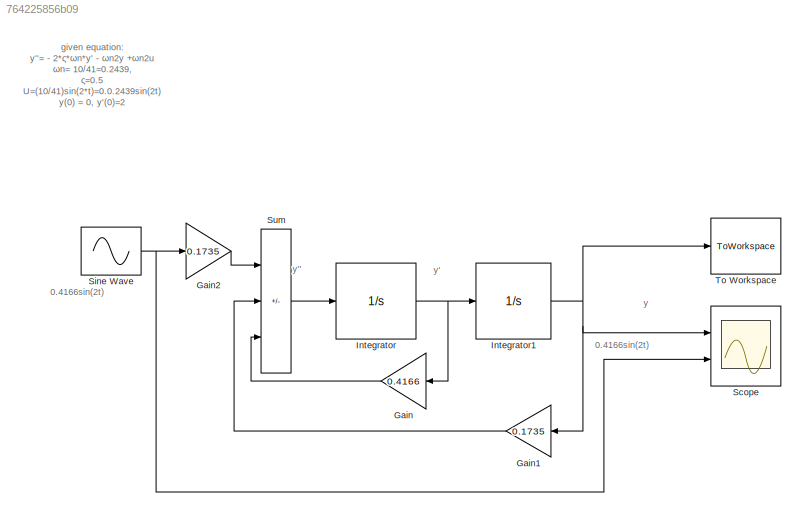
MODEL slx_764225856b09
KIND model
CONFIG AbsTol = auto
CONFIG EnableMultiTasking = off
CONFIG FixedStep = auto
CONFIG MaxStep = auto
CONFIG MinStep = auto
CONFIG RelTol = 1e-3
CONFIG SampleTimeConstraint = Unconstrained
CONFIG SolverName = VariableStepAuto
CONFIG StartTime = 0.0
CONFIG StopTime = 10.0
BLOCK [Gain] Gain
  Gain = 0.4166
BLOCK [Gain] Gain1
  Gain = 0.1735
BLOCK [Gain] Gain2
  Gain = 0.1735
BLOCK [Integrator] Integrator
  InitialCondition = 2
  Ports = [1, 1]
BLOCK [Integrator] Integrator1
  Ports = [1, 1]
BLOCK [Scope] Scope
  Floating = off
  NumInputPorts = 2
  Ports = [2]
  ScopeSpecificationString = Simulink.scopes.TimeScopeBlockCfg('CurrentConfiguration', extmgr.ConfigurationSet(extmgr.Configuration('Core','General UI',true,'FigureColor',[1 1 1]),extmgr.Configuration('Core','Source UI',true),extmgr.Configuration('Sources','WiredSimulink',true),extmgr.Configuration('Visuals','Time Domain',true,'SerializedDisplays',{struct('MinYLimReal','-0.85829','MaxYLimReal','5.28744','YLabelReal','','MinYL...<+2375ch>
BLOCK [Sin] Sine Wave
  Amplitude = 0.4166
  Frequency = 2
  Ports = [0, 1]
  SampleTime = 0
BLOCK [Sum] Sum
  IconShape = rectangular
  Inputs = +--
  Ports = [3, 1]
BLOCK [ToWorkspace] To Workspace
  FixptAsFi = on
  MaxDataPoints = inf
  Ports = [1]
  SampleTime = -1
  SaveFormat = Timeseries
  VariableName = simout
ANNOTATION (root): 0.4166 sin(2t)
ANNOTATION (root): 0.4166sin(2t)
ANNOTATION (root): given equation: y''= - 2* ς* ω n* y' - ω n 2 y +ω n 2 u ω n= 10/41=0.2439 , ς =0.5 U=(10/41)sin(2*t)=0.0.2439sin(2t) y(0) = 0, y'(0)=2
ANNOTATION (root): y''
ANNOTATION (root): y'
ANNOTATION (root): y
LINE Gain1:1 -> Sum:2
LINE Gain2:1 -> Sum:1
LINE Gain:1 -> Sum:3
NET Integrator1:1 -> Gain1:1, Scope:1, To Workspace:1
NET Integrator:1 -> Gain:1, Integrator1:1
NET Sine Wave:1 -> Gain2:1, Scope:2
LINE Sum:1 -> Integrator:1
note: NET lines group one-source signal fan-out (src -> all destinations, sorted); 1:1 wires keep LINE
